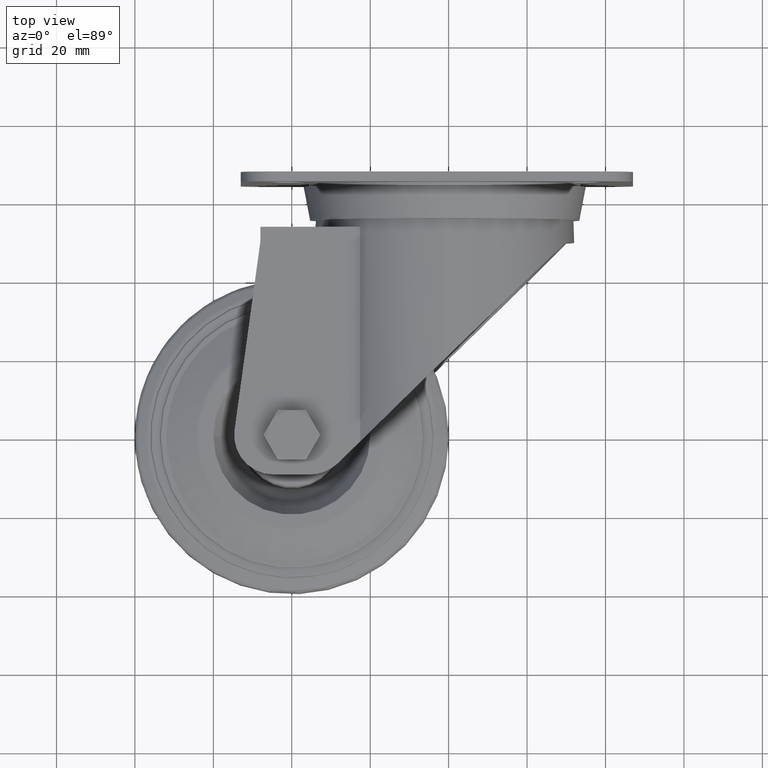
[diagram: clean part render]
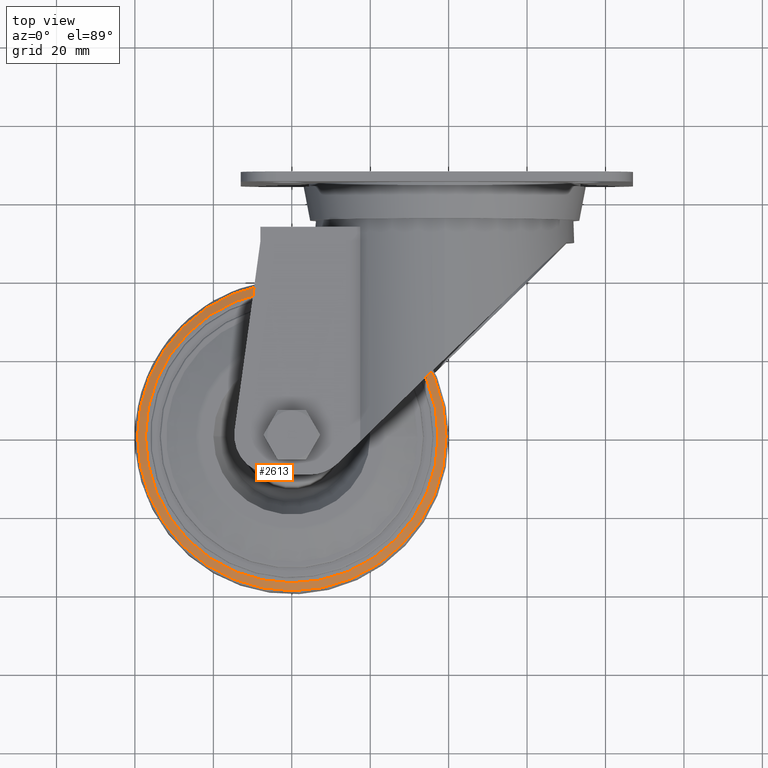
[diagram: same view with one face highlighted and labeled with its STEP entity id]
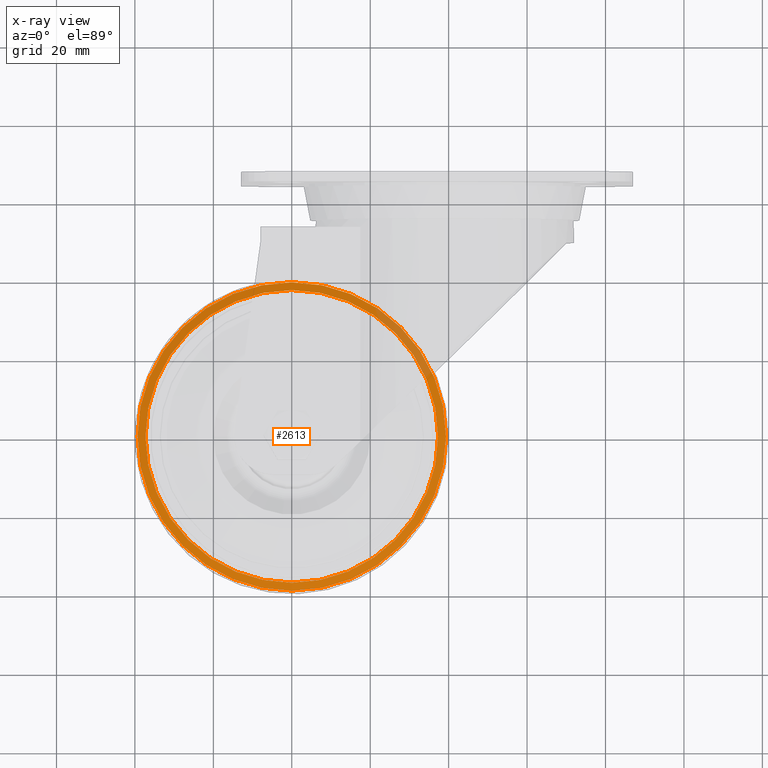
[diagram: x-ray of the same camera — body ghosted, the highlighted face saturated]
A machine part, top view. The second image highlights one B-rep face of the part: STEP entity #2613.
The next image is the same camera in x-ray: the body ghosted, the highlighted face saturated — about 9% of this face is hidden behind the body in this view.
In plain terms, the highlighted conical surface has half-angle 71 deg.
Its self-contained STEP definition (entity closure, byte-faithful):
#335=LINE('',#4713,#463);
#463=VECTOR('',#3757,39.3255681544572);
#640=FACE_OUTER_BOUND('',#835,.T.);
#835=EDGE_LOOP('',(#2295,#2296,#2297,#2298));
#1008=CIRCLE('',#3019,39.3255681544572);
#1009=CIRCLE('',#3021,37.3150280989202);
#1301=VERTEX_POINT('',#4708);
#1302=VERTEX_POINT('',#4712);
#1638=EDGE_CURVE('',#1301,#1301,#1008,.T.);
#1639=EDGE_CURVE('',#1301,#1302,#335,.T.);
#1640=EDGE_CURVE('',#1302,#1302,#1009,.T.);
#2295=ORIENTED_EDGE('',*,*,#1638,.F.);
#2296=ORIENTED_EDGE('',*,*,#1639,.T.);
#2297=ORIENTED_EDGE('',*,*,#1640,.T.);
#2298=ORIENTED_EDGE('',*,*,#1639,.F.);
#2478=CONICAL_SURFACE('',#3020,39.3255681544572,1.23918376891597);
#2613=ADVANCED_FACE('',(#640),#2478,.T.);
#3019=AXIS2_PLACEMENT_3D('',#4710,#3753,#3754);
#3020=AXIS2_PLACEMENT_3D('',#4711,#3755,#3756);
#3021=AXIS2_PLACEMENT_3D('',#4714,#3758,#3759);
#3753=DIRECTION('center_axis',(6.12323399573677E-17,0.,-1.));
#3754=DIRECTION('ref_axis',(-1.,0.,-6.12323399573677E-17));
#3755=DIRECTION('center_axis',(6.12323399573677E-17,0.,-1.));
#3756=DIRECTION('ref_axis',(-1.,0.,-6.12323399573677E-17));
#3757=DIRECTION('',(-0.945518575599315,1.15792629714207E-16,0.32556815445716));
#3758=DIRECTION('center_axis',(6.12323399573677E-17,0.,-1.));
#3759=DIRECTION('ref_axis',(-1.,0.,-6.12323399573677E-17));
#4708=CARTESIAN_POINT('',(39.3255681544572,-4.81599311650071E-15,7.22298369506767));
#4710=CARTESIAN_POINT('Origin',(-4.42280193122907E-16,0.,7.22298369506767));
#4711=CARTESIAN_POINT('Origin',(-4.42280193122907E-16,0.,7.22298369506767));
#4712=CARTESIAN_POINT('',(37.3150280989202,-4.56977297214362E-15,7.915268153814));
#4713=CARTESIAN_POINT('',(39.3255681544572,-4.81599311650071E-15,7.22298369506767));
#4714=CARTESIAN_POINT('Origin',(-4.84670390448063E-16,0.,7.91526815381396));